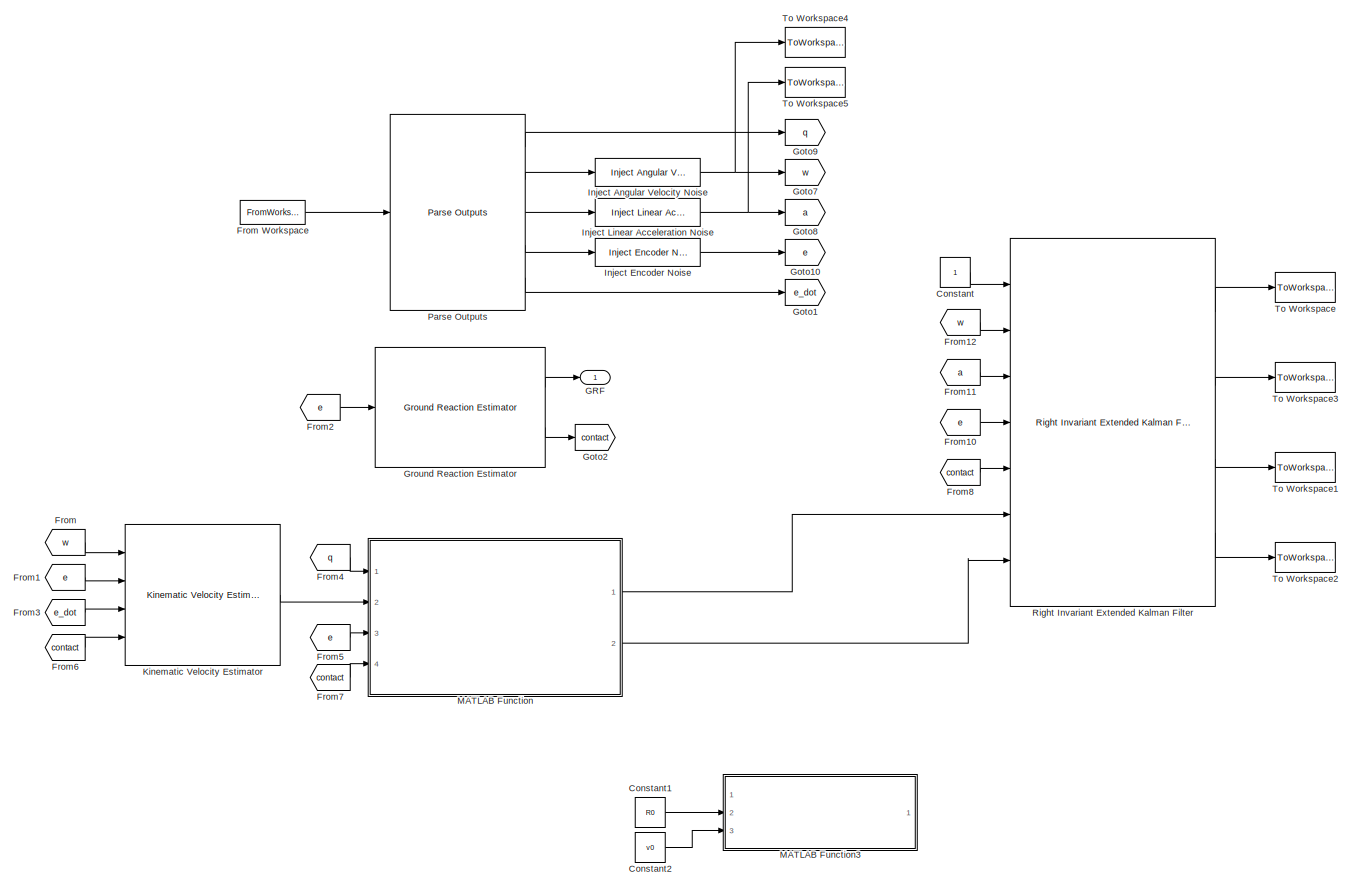
[diagram: root canvas - part 1/1, most of the canvas]
MODEL slx_98fcdd0c2eae
KIND model
CONFIG AbsTol = auto
CONFIG EnableMultiTasking = on
CONFIG FixedStep = auto
CONFIG InitFcn = CassieModule.importBuses;\n
CONFIG MaxStep = auto
CONFIG MinStep = auto
CONFIG RelTol = 1e-3
CONFIG SampleTimeConstraint = Unconstrained
CONFIG Solver = FixedStepDiscrete
CONFIG SolverName = FixedStepDiscrete
CONFIG StartTime = 0.0
CONFIG StopTime = inf
BLOCK [Constant] Constant
  SampleTime = -1
BLOCK [Constant] Constant1
  Commented = on
  Value = R0
BLOCK [Constant] Constant2
  Commented = on
  Value = v0
BLOCK [From] From
  GotoTag = w
BLOCK [FromWorkspace] From Workspace
  Interpolate = off
  OutDataTypeStr = Bus: CassieOutBus
  OutputAfterFinalValue = Holding final value
  VariableName = outputs
  ZeroCross = on
BLOCK [From] From1
  GotoTag = e
BLOCK [From] From10
  GotoTag = e
BLOCK [From] From11
  GotoTag = a
BLOCK [From] From12
  GotoTag = w
BLOCK [From] From2
  GotoTag = e
BLOCK [From] From3
  GotoTag = e_dot
BLOCK [From] From4
  GotoTag = q
BLOCK [From] From5
  GotoTag = e
BLOCK [From] From6
  GotoTag = contact
BLOCK [From] From7
  GotoTag = contact
BLOCK [From] From8
  GotoTag = contact
BLOCK [Outport] GRF
  IconDisplay = Port number
BLOCK [Goto] Goto1
  GotoTag = e_dot
BLOCK [Goto] Goto10
  GotoTag = e
BLOCK [Goto] Goto2
  GotoTag = contact
BLOCK [Goto] Goto7
  GotoTag = w
BLOCK [Goto] Goto8
  GotoTag = a
BLOCK [Goto] Goto9
  GotoTag = q
BLOCK [Reference] Ground Reaction Estimator  REF=lib_StateEstimation/Ground Reaction Estimator
  Ports = [1, 2]
  SourceBlock = lib_StateEstimation/Ground Reaction Estimator
  SourceType = SubSystem
BLOCK [Reference] Inject Angular Velocity Noise  REF=lib_StateEstimation/Inject Angular Velocity Noise
  Ports = [1, 1]
  SourceBlock = lib_StateEstimation/Inject Angular Velocity Noise
  SourceType = SubSystem
BLOCK [Reference] Inject Encoder Noise  REF=lib_StateEstimation/Inject Encoder Noise
  Ports = [1, 1]
  SourceBlock = lib_StateEstimation/Inject Encoder Noise
  SourceType = SubSystem
BLOCK [Reference] Inject Linear Acceleration Noise  REF=lib_StateEstimation/Inject Linear Acceleration Noise
  Ports = [1, 1]
  SourceBlock = lib_StateEstimation/Inject Linear Acceleration Noise
  SourceType = SubSystem
BLOCK [Reference] Kinematic Velocity Estimator  REF=lib_StateEstimation/Kinematic Velocity Estimator
  Ports = [4, 1]
  SourceBlock = lib_StateEstimation/Kinematic Velocity Estimator
  SourceType = SubSystem
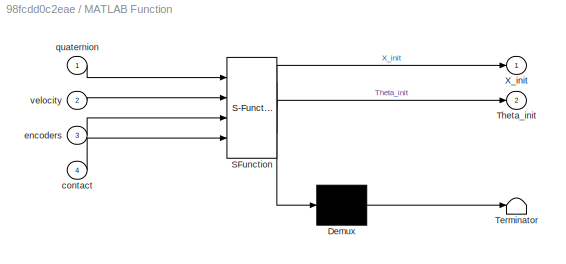
BLOCK [SubSystem] MATLAB Function
  ErrorFcn = Stateflow.Translate.translate
  PermitHierarchicalResolution = ExplicitOnly
  Ports = [4, 2]
  RequestExecContextInheritance = off
  SFBlockType = MATLAB Function
  TreatAsAtomicUnit = on
  Variant = off
BLOCK [Demux] MATLAB Function/ Demux 
  Outputs = 1
  Ports = [1, 1]
BLOCK [S-Function] MATLAB Function/ SFunction 
  EnableBusSupport = on
  FunctionName = sf_sfun
  PortCounts = [4 3]
  Ports = [4, 3]
  SFcnIsStateOwnerBlock = off
  SFunctionDeploymentMode = off
  Tag = Stateflow S-Function example_RIEKF 3
BLOCK [Terminator] MATLAB Function/ Terminator 
BLOCK [Outport] MATLAB Function/Theta_init
  IconDisplay = Port number
  Port = 2
BLOCK [Outport] MATLAB Function/X_init
  IconDisplay = Port number
BLOCK [Inport] MATLAB Function/contact
  IconDisplay = Port number
  Port = 4
BLOCK [Inport] MATLAB Function/encoders
  IconDisplay = Port number
  Port = 3
BLOCK [Inport] MATLAB Function/quaternion
  IconDisplay = Port number
BLOCK [Inport] MATLAB Function/velocity
  IconDisplay = Port number
  Port = 2
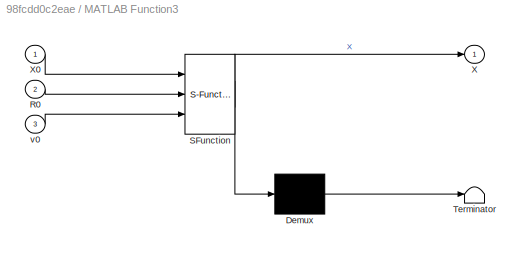
BLOCK [SubSystem] MATLAB Function3
  Commented = on
  ErrorFcn = Stateflow.Translate.translate
  PermitHierarchicalResolution = ExplicitOnly
  Ports = [3, 1]
  RequestExecContextInheritance = off
  SFBlockType = MATLAB Function
  TreatAsAtomicUnit = on
  Variant = off
BLOCK [Demux] MATLAB Function3/ Demux 
  Outputs = 1
  Ports = [1, 1]
BLOCK [S-Function] MATLAB Function3/ SFunction 
  EnableBusSupport = on
  FunctionName = sf_sfun
  PortCounts = [3 2]
  Ports = [3, 2]
  SFcnIsStateOwnerBlock = off
  SFunctionDeploymentMode = off
  Tag = Stateflow S-Function example_RIEKF 4
BLOCK [Terminator] MATLAB Function3/ Terminator 
BLOCK [Inport] MATLAB Function3/R0
  IconDisplay = Port number
  Port = 2
BLOCK [Outport] MATLAB Function3/X
  IconDisplay = Port number
BLOCK [Inport] MATLAB Function3/X0
  IconDisplay = Port number
BLOCK [Inport] MATLAB Function3/v0
  IconDisplay = Port number
  Port = 3
BLOCK [Reference] Parse Outputs  REF=lib_StateEstimation/Parse Outputs
  Ports = [1, 5]
  SourceBlock = lib_StateEstimation/Parse Outputs
  SourceType = SubSystem
BLOCK [Reference] Right Invariant Extended Kalman Filter  REF=lib_StateEstimation/Right Invariant Extended Kalman Filter
  Ports = [7, 4]
  SourceBlock = lib_StateEstimation/Right Invariant Extended Kalman Filter
  SourceType = SubSystem
BLOCK [ToWorkspace] To Workspace
  FixptAsFi = on
  MaxDataPoints = inf
  Ports = [1]
  SampleTime = -1
  Save2DSignal = 3-D array (concatenate along third dimension)
  SaveFormat = Timeseries
  VariableName = X_riekf
BLOCK [ToWorkspace] To Workspace1
  FixptAsFi = on
  MaxDataPoints = inf
  Ports = [1]
  SampleTime = -1
  Save2DSignal = 3-D array (concatenate along third dimension)
  SaveFormat = Timeseries
  VariableName = P_riekf
BLOCK [ToWorkspace] To Workspace2
  FixptAsFi = on
  MaxDataPoints = inf
  Ports = [1]
  SampleTime = -1
  Save2DSignal = 3-D array (concatenate along third dimension)
  SaveFormat = Timeseries
  VariableName = enabled
BLOCK [ToWorkspace] To Workspace3
  FixptAsFi = on
  MaxDataPoints = inf
  Ports = [1]
  SampleTime = -1
  Save2DSignal = 3-D array (concatenate along third dimension)
  SaveFormat = Timeseries
  VariableName = Theta_riekf
BLOCK [ToWorkspace] To Workspace4
  FixptAsFi = on
  MaxDataPoints = inf
  Ports = [1]
  SampleTime = -1
  Save2DSignal = 3-D array (concatenate along third dimension)
  SaveFormat = Timeseries
  VariableName = w_noisy
BLOCK [ToWorkspace] To Workspace5
  FixptAsFi = on
  MaxDataPoints = inf
  Ports = [1]
  SampleTime = -1
  Save2DSignal = 3-D array (concatenate along third dimension)
  SaveFormat = Timeseries
  VariableName = a_noisy
LINE Constant1:1 -> MATLAB Function3:2
LINE Constant2:1 -> MATLAB Function3:3
LINE Constant:1 -> Right Invariant Extended Kalman Filter:1
LINE From Workspace:1 -> Parse Outputs:1
LINE From10:1 -> Right Invariant Extended Kalman Filter:4
LINE From11:1 -> Right Invariant Extended Kalman Filter:3
LINE From12:1 -> Right Invariant Extended Kalman Filter:2
LINE From1:1 -> Kinematic Velocity Estimator:2
LINE From2:1 -> Ground Reaction Estimator:1
LINE From3:1 -> Kinematic Velocity Estimator:3
LINE From4:1 -> MATLAB Function:1
LINE From5:1 -> MATLAB Function:3
LINE From6:1 -> Kinematic Velocity Estimator:4
LINE From7:1 -> MATLAB Function:4
LINE From8:1 -> Right Invariant Extended Kalman Filter:5
LINE From:1 -> Kinematic Velocity Estimator:1
LINE Ground Reaction Estimator:1 -> GRF:1
LINE Ground Reaction Estimator:2 -> Goto2:1
NET Inject Angular Velocity Noise:1 -> Goto7:1, To Workspace4:1
LINE Inject Encoder Noise:1 -> Goto10:1
NET Inject Linear Acceleration Noise:1 -> Goto8:1, To Workspace5:1
LINE Kinematic Velocity Estimator:1 -> MATLAB Function:2
LINE MATLAB Function:1 -> Right Invariant Extended Kalman Filter:6
LINE MATLAB Function:2 -> Right Invariant Extended Kalman Filter:7
LINE Parse Outputs:1 -> Goto9:1
LINE Parse Outputs:2 -> Inject Angular Velocity Noise:1
LINE Parse Outputs:3 -> Inject Linear Acceleration Noise:1
LINE Parse Outputs:4 -> Inject Encoder Noise:1
LINE Parse Outputs:5 -> Goto1:1
LINE Right Invariant Extended Kalman Filter:1 -> To Workspace:1
LINE Right Invariant Extended Kalman Filter:2 -> To Workspace3:1
LINE Right Invariant Extended Kalman Filter:3 -> To Workspace1:1
LINE Right Invariant Extended Kalman Filter:4 -> To Workspace2:1
note: NET lines group one-source signal fan-out (src -> all destinations, sorted); 1:1 wires keep LINE
CHART MATLAB Function states=1 transitions=1
  STATE_LABEL 'eML_blk_kernel()'
  STATE_LABEL 'SCRIPT:\nfunction [X_init, Theta_init] = InitialStateEstimate(quaternion, velocity, encoders, contact)\n\nR = Angles.Quaternion_to_Rotation(quaternion);\np = zeros(3,1); \nv = R*velocity;\npR = p_VectorNav_to_RightToeBottom(encoders);\npL = p_VectorNav_to_LeftToeBottom(encoders);\n\nif contact(1) == 1\n    % Initialize with left foot at 0\n    p = -R * pL; % {W}_p_{WL}\nelseif contact(2) == 1\n    % Initialize...<+287ch>'
CHART MATLAB Function3 states=1 transitions=1
  STATE_LABEL 'eML_blk_kernel()'
  STATE_LABEL 'SCRIPT:\nfunction X  = OverwriteState(X0, R0, v0)\nX = X0;\nX(1:3,1:4) = [R0, v0];\nend'
